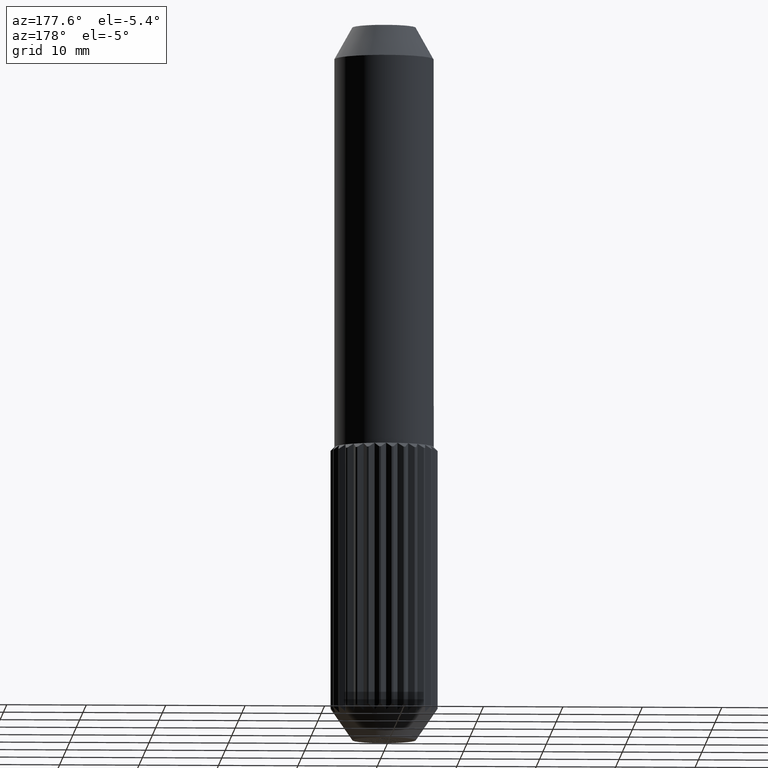
[diagram: clean part render]
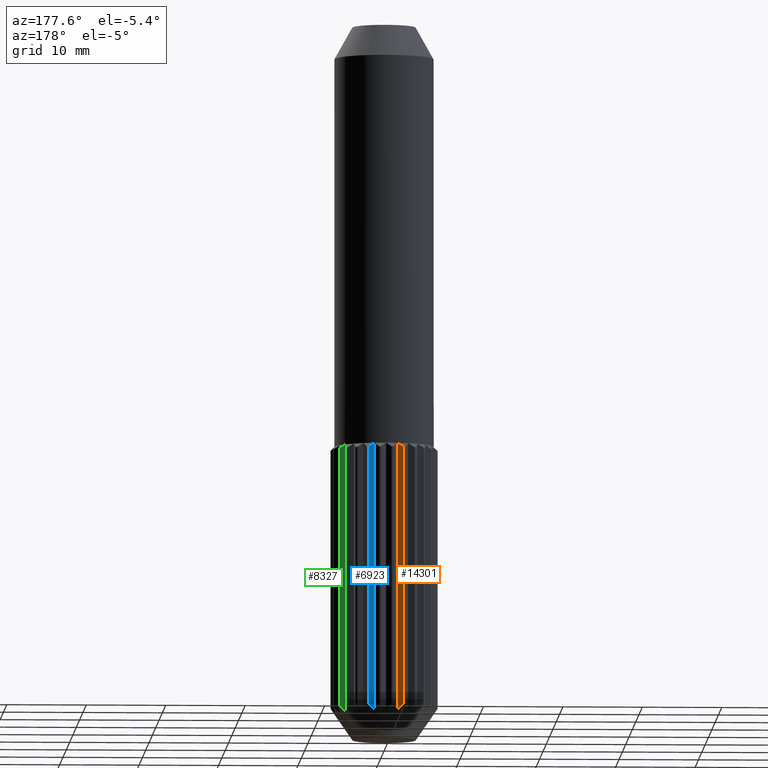
[diagram: same view with three faces highlighted in distinct colors, each labeled with its STEP entity id]
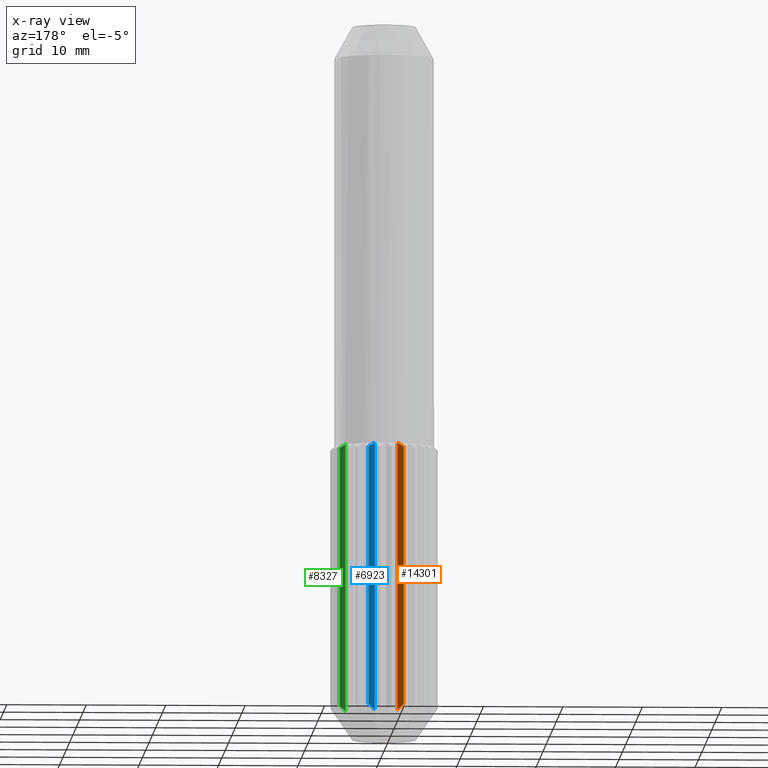
[diagram: x-ray of the same camera — body ghosted, the three highlighted faces saturated]
A machine part, auxiliary view with three faces highlighted in distinct colors.
The next image is the same camera in x-ray (body ghosted, the three faces saturated) — at least one of them is partly hidden behind the body in this view.
Their STEP definitions:

[orange] entity #14301 — the highlighted planar face has unit normal (-0.3693, -0.9293, 0).
#306 = CARTESIAN_POINT ( 'NONE',  ( -1.440995380601995279, 6.081614285128885022, -41.72727272727274084 ) ) ;
#380 = DIRECTION ( 'NONE',  ( -0.3692602139351570112, -0.9293260431111151076, 0.000000000000000000 ) ) ;
#636 = ORIENTED_EDGE ( 'NONE', *, *, #9221, .F. ) ;
#1010 = CARTESIAN_POINT ( 'NONE',  ( -1.440995380601995279, 6.081614285128885022, -8.000000000000007105 ) ) ;
#1483 = CARTESIAN_POINT ( 'NONE',  ( -1.700813732123253930, 6.184851013269891951, -41.49402344612072824 ) ) ;
#1815 = VECTOR ( 'NONE', #5565, 1000.000000000000000 ) ;
#2177 = LINE ( 'NONE', #7906, #1815 ) ;
#2324 = LINE ( 'NONE', #1010, #14583 ) ;
#2591 = CARTESIAN_POINT ( 'NONE',  ( -1.952063501244514443, 6.284683084247141061, -41.25045260912823153 ) ) ;
#3283 = AXIS2_PLACEMENT_3D ( 'NONE', #9991, #380, #4087 ) ;
#4087 = DIRECTION ( 'NONE',  ( 0.9293260431111149966, -0.3692602139351569557, 0.000000000000000000 ) ) ;
#5517 = ORIENTED_EDGE ( 'NONE', *, *, #11845, .F. ) ;
#5565 = DIRECTION ( 'NONE',  ( -0.000000000000000000, -0.000000000000000000, -1.000000000000000000 ) ) ;
#5662 = EDGE_LOOP ( 'NONE', ( #5517, #14386, #5785, #636 ) ) ;
#5785 = ORIENTED_EDGE ( 'NONE', *, *, #8488, .T. ) ;
#7522 = EDGE_CURVE ( 'NONE', #11610, #13129, #14631, .T. ) ;
#7906 = CARTESIAN_POINT ( 'NONE',  ( -2.197600272004451849, 6.382245141365690877, -8.000000000000007105 ) ) ;
#8380 = CARTESIAN_POINT ( 'NONE',  ( -2.197600272004451849, 6.382245141365690877, -8.500000000000023093 ) ) ;
#8488 = EDGE_CURVE ( 'NONE', #13129, #11698, #2324, .T. ) ;
#8626 = CARTESIAN_POINT ( 'NONE',  ( -1.440995380601995279, 6.081614285128885022, -41.72727272727274084 ) ) ;
#8987 = VERTEX_POINT ( 'NONE', #12649 ) ;
#9068 = CARTESIAN_POINT ( 'NONE',  ( -1.440995380602007714, 6.081614285128880582, -8.000000000000007105 ) ) ;
#9221 = EDGE_CURVE ( 'NONE', #8987, #11698, #14834, .T. ) ;
#9991 = CARTESIAN_POINT ( 'NONE',  ( -1.440995380601995279, 6.081614285128885022, -8.000000000000007105 ) ) ;
#10240 = CARTESIAN_POINT ( 'NONE',  ( -1.440995380602007714, 6.081614285128880582, -8.000000000000007105 ) ) ;
#11610 = VERTEX_POINT ( 'NONE', #8380 ) ;
#11698 = VERTEX_POINT ( 'NONE', #306 ) ;
#11845 = EDGE_CURVE ( 'NONE', #11610, #8987, #2177, .T. ) ;
#12526 = CARTESIAN_POINT ( 'NONE',  ( -1.949553447736710243, 6.283685734713948534, -8.326053620337855676 ) ) ;
#12649 = CARTESIAN_POINT ( 'NONE',  ( -2.197600272004451849, 6.382245141365690877, -41.00000000000001421 ) ) ;
#13129 = VERTEX_POINT ( 'NONE', #9068 ) ;
#13692 = CARTESIAN_POINT ( 'NONE',  ( -2.197600272004451849, 6.382245141365690877, -8.500000000000023093 ) ) ;
#14173 = DIRECTION ( 'NONE',  ( -0.000000000000000000, -0.000000000000000000, -1.000000000000000000 ) ) ;
#14301 = ADVANCED_FACE ( 'NONE', ( #14355 ), #14723, .F. ) ;
#14355 = FACE_OUTER_BOUND ( 'NONE', #5662, .T. ) ;
#14386 = ORIENTED_EDGE ( 'NONE', *, *, #7522, .T. ) ;
#14437 = CARTESIAN_POINT ( 'NONE',  ( -2.197600272004451849, 6.382245141365690877, -41.00000000000001421 ) ) ;
#14583 = VECTOR ( 'NONE', #14173, 1000.000000000000000 ) ;
#14631 = B_SPLINE_CURVE_WITH_KNOTS ( 'NONE', 3,
 ( #13692, #12526, #14928, #10240 ),
 .UNSPECIFIED., .F., .F.,
 ( 4, 4 ),
 ( 2.567862344841204724E-07, 0.0009556780929968435772 ),
 .UNSPECIFIED. ) ;
#14723 = PLANE ( 'NONE',  #3283 ) ;
#14834 = B_SPLINE_CURVE_WITH_KNOTS ( 'NONE', 3,
 ( #14437, #2591, #1483, #8626 ),
 .UNSPECIFIED., .F., .F.,
 ( 4, 4 ),
 ( 2.964070878319450800E-07, 0.001091971951033930167 ),
 .UNSPECIFIED. ) ;
#14928 = CARTESIAN_POINT ( 'NONE',  ( -1.697843416522975435, 6.183670782303436475, -8.158525613501742768 ) ) ;

[blue] entity #6923 — the highlighted planar face has unit normal (0.3692, -0.9294, 0).
#46 = VERTEX_POINT ( 'NONE', #4980 ) ;
#223 = CARTESIAN_POINT ( 'NONE',  ( 2.198342865069189855, 6.381989395760494510, -8.500000000000024869 ) ) ;
#467 = VECTOR ( 'NONE', #13873, 1000.000000000000000 ) ;
#594 = ORIENTED_EDGE ( 'NONE', *, *, #1555, .F. ) ;
#780 = AXIS2_PLACEMENT_3D ( 'NONE', #11388, #12582, #11238 ) ;
#1555 = EDGE_CURVE ( 'NONE', #3863, #2751, #12590, .T. ) ;
#1609 = CARTESIAN_POINT ( 'NONE',  ( 1.441702998799983204, 6.081446576535155302, -41.72727272727274084 ) ) ;
#1925 = LINE ( 'NONE', #13297, #11359 ) ;
#2157 = ORIENTED_EDGE ( 'NONE', *, *, #11241, .T. ) ;
#2229 = CARTESIAN_POINT ( 'NONE',  ( 2.198342865069189855, 6.381989395760494510, -8.000000000000007105 ) ) ;
#2751 = VERTEX_POINT ( 'NONE', #7627 ) ;
#3863 = VERTEX_POINT ( 'NONE', #1609 ) ;
#4246 = VERTEX_POINT ( 'NONE', #10830 ) ;
#4980 = CARTESIAN_POINT ( 'NONE',  ( 2.198342865069189855, 6.381989395760494510, -8.500000000000024869 ) ) ;
#5350 = ORIENTED_EDGE ( 'NONE', *, *, #10793, .F. ) ;
#5466 = PLANE ( 'NONE',  #780 ) ;
#5807 = B_SPLINE_CURVE_WITH_KNOTS ( 'NONE', 3,
 ( #14616, #6373, #7354, #223 ),
 .UNSPECIFIED., .F., .F.,
 ( 4, 4 ),
 ( 2.479733791353058815E-07, 0.0009556692801415177588 ),
 .UNSPECIFIED. ) ;
#6373 = CARTESIAN_POINT ( 'NONE',  ( 1.698562907795113874, 6.183473187392974246, -8.158525613501863560 ) ) ;
#6923 = ADVANCED_FACE ( 'NONE', ( #12695 ), #5466, .F. ) ;
#7354 = CARTESIAN_POINT ( 'NONE',  ( 1.950284574573044383, 6.283458851334483342, -8.326053620337980021 ) ) ;
#7627 = CARTESIAN_POINT ( 'NONE',  ( 2.198342865069189855, 6.381989395760494510, -41.00000000000001421 ) ) ;
#7740 = CARTESIAN_POINT ( 'NONE',  ( 2.198342865069189855, 6.381989395760494510, -41.00000000000001421 ) ) ;
#8976 = ORIENTED_EDGE ( 'NONE', *, *, #10643, .T. ) ;
#8980 = CARTESIAN_POINT ( 'NONE',  ( 1.701533360701457998, 6.184653072739553892, -41.49402344612049376 ) ) ;
#10159 = CARTESIAN_POINT ( 'NONE',  ( 1.952794744110786906, 6.284455908802954127, -41.25045260912801837 ) ) ;
#10643 = EDGE_CURVE ( 'NONE', #46, #2751, #11542, .T. ) ;
#10793 = EDGE_CURVE ( 'NONE', #4246, #3863, #1925, .T. ) ;
#10830 = CARTESIAN_POINT ( 'NONE',  ( 1.441702998799965219, 6.081446576535157078, -8.000000000000007105 ) ) ;
#11021 = DIRECTION ( 'NONE',  ( -0.000000000000000000, -0.000000000000000000, -1.000000000000000000 ) ) ;
#11238 = DIRECTION ( 'NONE',  ( 0.9293690021970191228, 0.3691520794405971362, 0.000000000000000000 ) ) ;
#11241 = EDGE_CURVE ( 'NONE', #4246, #46, #5807, .T. ) ;
#11359 = VECTOR ( 'NONE', #11021, 1000.000000000000000 ) ;
#11388 = CARTESIAN_POINT ( 'NONE',  ( 2.198342865069189855, 6.381989395760494510, -8.000000000000007105 ) ) ;
#11542 = LINE ( 'NONE', #2229, #467 ) ;
#12435 = CARTESIAN_POINT ( 'NONE',  ( 1.441702998799983204, 6.081446576535155302, -41.72727272727274084 ) ) ;
#12582 = DIRECTION ( 'NONE',  ( 0.3691520794405971917, -0.9293690021970192339, 0.000000000000000000 ) ) ;
#12590 = B_SPLINE_CURVE_WITH_KNOTS ( 'NONE', 3,
 ( #12435, #8980, #10159, #7740 ),
 .UNSPECIFIED., .F., .F.,
 ( 4, 4 ),
 ( 2.800971492506857613E-07, 0.001091955641095350340 ),
 .UNSPECIFIED. ) ;
#12695 = FACE_OUTER_BOUND ( 'NONE', #12970, .T. ) ;
#12970 = EDGE_LOOP ( 'NONE', ( #5350, #2157, #8976, #594 ) ) ;
#13297 = CARTESIAN_POINT ( 'NONE',  ( 1.441702998799983204, 6.081446576535155302, -8.000000000000007105 ) ) ;
#13873 = DIRECTION ( 'NONE',  ( -0.000000000000000000, -0.000000000000000000, -1.000000000000000000 ) ) ;
#14616 = CARTESIAN_POINT ( 'NONE',  ( 1.441702998799965219, 6.081446576535157078, -8.000000000000007105 ) ) ;

[green] entity #8327 — the highlighted planar face has unit normal (-0.3146, -0.9492, 0).
#235 = CARTESIAN_POINT ( 'NONE',  ( 5.278868541234341016, 3.643994557223654063, -41.49402344601444526 ) ) ;
#347 = EDGE_CURVE ( 'NONE', #4427, #4762, #15107, .T. ) ;
#692 = FACE_OUTER_BOUND ( 'NONE', #7111, .T. ) ;
#1083 = CARTESIAN_POINT ( 'NONE',  ( 5.786292044602241447, 3.475819957157277429, -8.500000000000023093 ) ) ;
#1334 = CARTESIAN_POINT ( 'NONE',  ( 5.013487079226110588, 3.731949531603132364, -8.000000000000007105 ) ) ;
#1610 = VECTOR ( 'NONE', #2753, 1000.000000000000000 ) ;
#1926 = VECTOR ( 'NONE', #6895, 1000.000000000000000 ) ;
#2537 = CARTESIAN_POINT ( 'NONE',  ( 5.786292044602241447, 3.475819957157277429, -41.00000000000001421 ) ) ;
#2705 = CARTESIAN_POINT ( 'NONE',  ( 5.786292044602241447, 3.475819957157277429, -8.000000000000007105 ) ) ;
#2715 = VERTEX_POINT ( 'NONE', #4259 ) ;
#2753 = DIRECTION ( 'NONE',  ( -0.000000000000000000, -0.000000000000000000, -1.000000000000000000 ) ) ;
#3513 = CARTESIAN_POINT ( 'NONE',  ( 5.013487079226110588, 3.731949531603132364, -8.000000000000007105 ) ) ;
#3624 = LINE ( 'NONE', #2705, #1610 ) ;
#3722 = CARTESIAN_POINT ( 'NONE',  ( 5.013487079226120358, 3.731949531603121706, -41.72727272727274084 ) ) ;
#4259 = CARTESIAN_POINT ( 'NONE',  ( 5.013487079226120358, 3.731949531603121706, -41.72727272727274084 ) ) ;
#4270 = CARTESIAN_POINT ( 'NONE',  ( 5.786292044602241447, 3.475819957157277429, -8.000000000000007105 ) ) ;
#4427 = VERTEX_POINT ( 'NONE', #3513 ) ;
#4695 = CARTESIAN_POINT ( 'NONE',  ( 5.786292044602241447, 3.475819957157277429, -8.500000000000023093 ) ) ;
#4762 = VERTEX_POINT ( 'NONE', #1083 ) ;
#5028 = AXIS2_PLACEMENT_3D ( 'NONE', #4270, #5471, #7591 ) ;
#5355 = CARTESIAN_POINT ( 'NONE',  ( 5.786292044602241447, 3.475819957157277429, -41.00000000000001421 ) ) ;
#5471 = DIRECTION ( 'NONE',  ( -0.3145999803177026433, -0.9492243424944922792, 0.000000000000000000 ) ) ;
#6369 = ORIENTED_EDGE ( 'NONE', *, *, #6849, .T. ) ;
#6849 = EDGE_CURVE ( 'NONE', #4762, #8561, #3624, .T. ) ;
#6895 = DIRECTION ( 'NONE',  ( -0.000000000000000000, -0.000000000000000000, -1.000000000000000000 ) ) ;
#7111 = EDGE_LOOP ( 'NONE', ( #7599, #10656, #6369, #15007 ) ) ;
#7322 = LINE ( 'NONE', #12911, #1926 ) ;
#7388 = EDGE_CURVE ( 'NONE', #2715, #8561, #14931, .T. ) ;
#7591 = DIRECTION ( 'NONE',  ( 0.9492243424944922792, -0.3145999803177026433, 0.000000000000000000 ) ) ;
#7599 = ORIENTED_EDGE ( 'NONE', *, *, #13211, .F. ) ;
#8327 = ADVANCED_FACE ( 'NONE', ( #692 ), #14751, .F. ) ;
#8561 = VERTEX_POINT ( 'NONE', #2537 ) ;
#10656 = ORIENTED_EDGE ( 'NONE', *, *, #347, .T. ) ;
#10787 = CARTESIAN_POINT ( 'NONE',  ( 5.532934156547399063, 3.559789976706002168, -8.326053620394297639 ) ) ;
#11167 = CARTESIAN_POINT ( 'NONE',  ( 5.535497954177691859, 3.558940261156242180, -41.25045260902837896 ) ) ;
#12911 = CARTESIAN_POINT ( 'NONE',  ( 5.013487079226120358, 3.731949531603121706, -8.000000000000007105 ) ) ;
#13211 = EDGE_CURVE ( 'NONE', #4427, #2715, #7322, .T. ) ;
#14248 = CARTESIAN_POINT ( 'NONE',  ( 5.275834626584597231, 3.645000082942249531, -8.158525613559264755 ) ) ;
#14751 = PLANE ( 'NONE',  #5028 ) ;
#14931 = B_SPLINE_CURVE_WITH_KNOTS ( 'NONE', 3,
 ( #3722, #235, #11167, #5355 ),
 .UNSPECIFIED., .F., .F.,
 ( 4, 4 ),
 ( 2.742382840171408977E-07, 0.001091949782230121867 ),
 .UNSPECIFIED. ) ;
#15007 = ORIENTED_EDGE ( 'NONE', *, *, #7388, .F. ) ;
#15107 = B_SPLINE_CURVE_WITH_KNOTS ( 'NONE', 3,
 ( #1334, #14248, #10787, #4695 ),
 .UNSPECIFIED., .F., .F.,
 ( 4, 4 ),
 ( 2.427864381819037814E-07, 0.0009556640932005661376 ),
 .UNSPECIFIED. ) ;